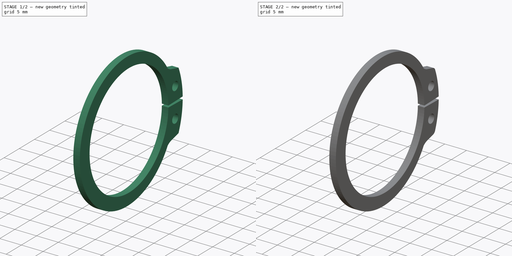
[diagram: build sequence overview — one tinted view per stage of 2, left to right]
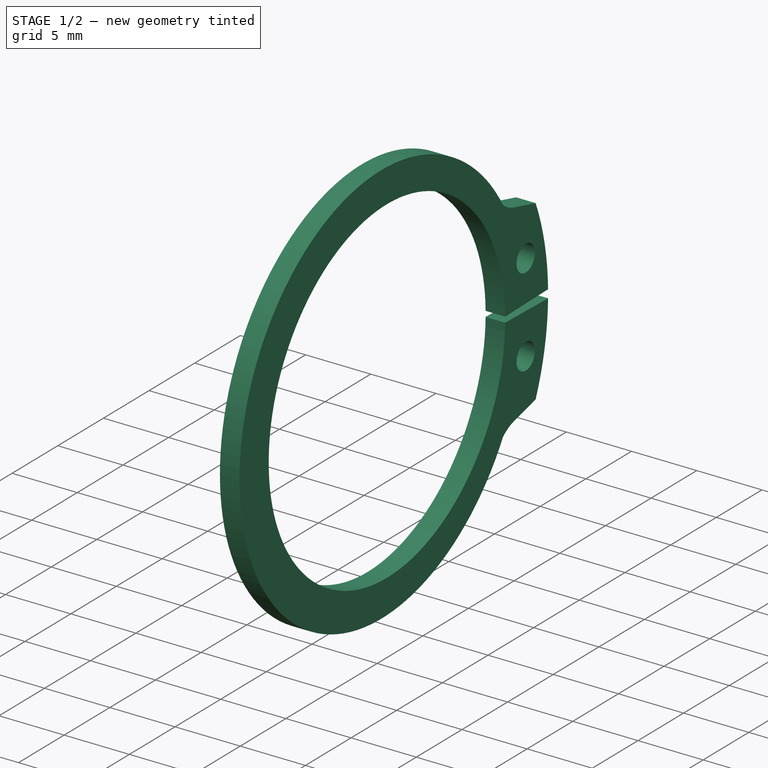
[diagram: stage 1 of 2 — iso view after this stage's code; geometry added in this stage tinted green]
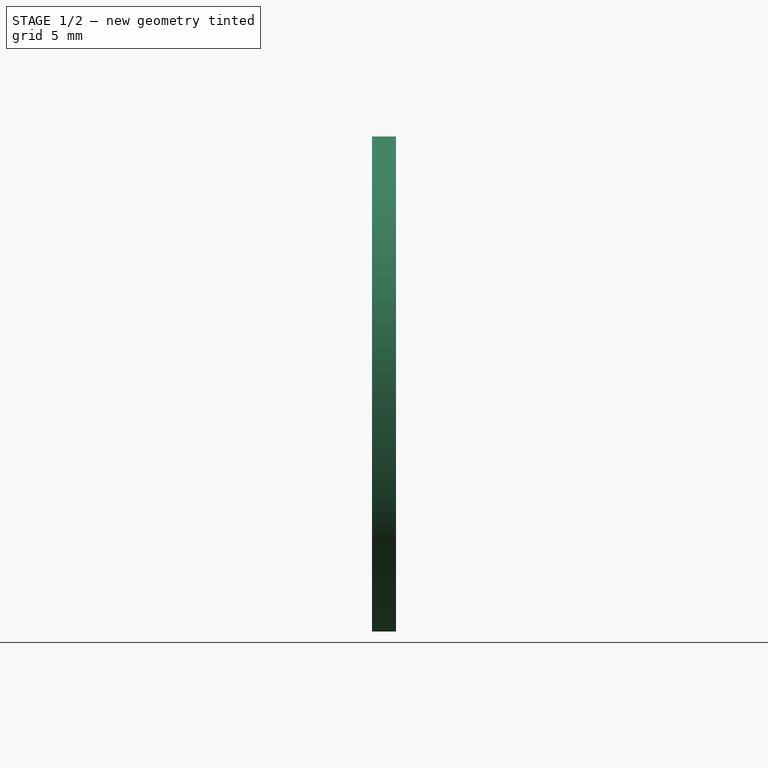
[diagram: stage 1 of 2 — front view after this stage's code; geometry added in this stage tinted green]
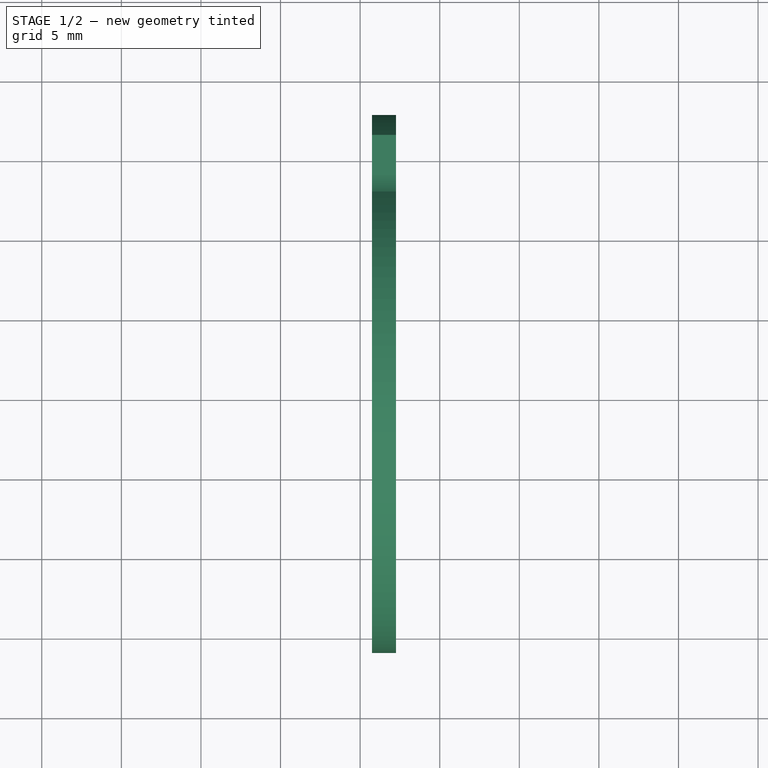
[diagram: stage 1 of 2 — top view after this stage's code; geometry added in this stage tinted green]
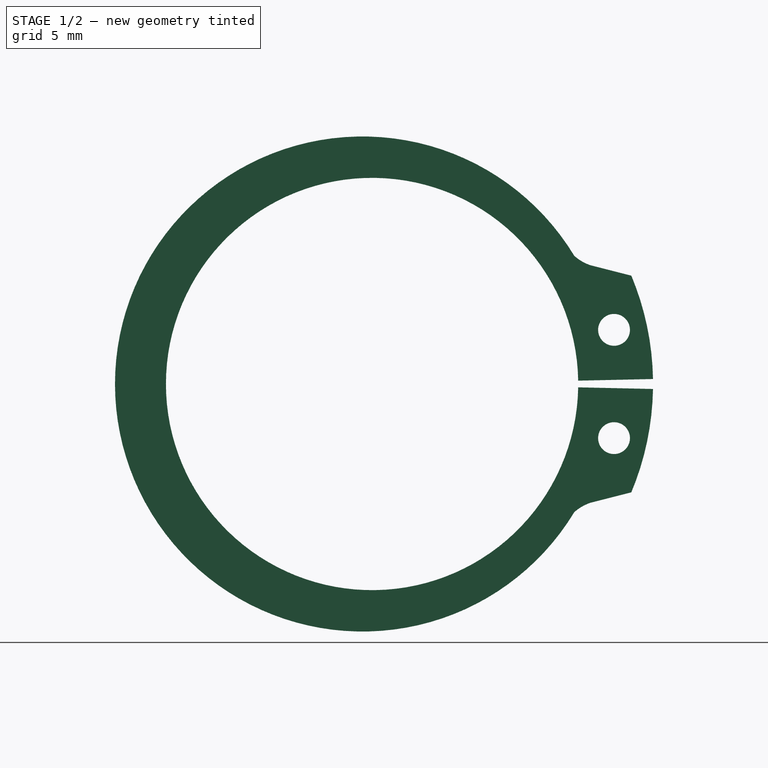
[diagram: stage 1 of 2 — right view after this stage's code; geometry added in this stage tinted green]
FCSTD DOCUMENT  (FreeCAD 0.15R4671 (Git))
Label: DIN471_CLASS_A_M28RetainingRings
License: CreativeCommons Attribution-ShareAlike
LicenseURL: http://creativecommons.org/licenses/by-sa/4.0/
objects: Sketcher::SketchObject×1, PartDesign::Pad×1, PartDesign::Mirrored×1, PartDesign::Fillet×1
note: 5 computed .brp shape members not serialized (recipe doc carries the construction recipe); baked Part::Feature solids carry a one-line shape summary decoded from their .brp

FEATURE [Sketcher::SketchObject] Sketch
  Placement = pos=(0.75,0,0) rot=(0.57735,0.57735,0.57735;2.0944rad)
  sketch-geometry (8):
    g0: Circle CenterX=15.2 CenterY=3.4 CenterZ=0 NormalX=0 NormalY=0 NormalZ=1 Radius=1
    g1: ArcOfCircle CenterX=0 CenterY=0 CenterZ=0 NormalX=0 NormalY=0 NormalZ=1 Radius=12.95 StartAngle=0.0162035 EndAngle=3.14159
    g2: ArcOfCircle CenterX=0 CenterY=0 CenterZ=0 NormalX=0 NormalY=0 NormalZ=1 Radius=17.6511 StartAngle=0.0177199 EndAngle=0.395835
    g3: ArcOfCircle CenterX=-0.6 CenterY=0 CenterZ=0 NormalX=0 NormalY=0 NormalZ=1 Radius=15.55 StartAngle=0.54452 EndAngle=3.14159
    g4: LineSegment StartX=-16.15 StartY=0 StartZ=0 EndX=-12.95 EndY=0 EndZ=0
    g5: LineSegment StartX=12.9483 StartY=0.209826 StartZ=0 EndX=17.6483 EndY=0.312759 EndZ=0
    g6: LineSegment StartX=16.2862 StartY=6.80588 StartZ=0 EndX=13.7321 EndY=7.45749 EndZ=0
    g7: ArcOfCircle CenterX=14.6212 CenterY=10.1798 CenterZ=0 NormalX=0 NormalY=0 NormalZ=1 Radius=2.8638 StartAngle=3.97756 EndAngle=4.39672
  constraints (26):
    c: Radius(g0) = 1
    c: DistanceY(g-1,g0) = 3.4
    c: DistanceX(g-1,g0) = 15.2
    c: Coincident(g1,g-1)
    c: PointOnObject(g1,g-1)
    c: Coincident(g2,g-1)
    c: PointOnObject(g3,g-1)
    c: PointOnObject(g3,g-1)
    c: Coincident(g4,g3)
    c: Coincident(g4,g1)
    c: DistanceX(g4) = 3.2
    c: DistanceX(g-1,g3) = -0.6
    c: Radius(g1) = 12.95
    c: Coincident(g5,g1)
    c: Coincident(g5,g2)
    c: DistanceX(g5) = 4.7
    c: DistanceX(g-1,g1) = 12.9483
    c: DistanceY(g-1,g2) = 0.312759
    c: Coincident(g6,g2)
    c: Coincident(g7,g3)
    c: Coincident(g7,g6)
    c: Radius(g7) = 2.8638
    c: DistanceX(g-1,g2) = 16.2862
    c: DistanceX(g-1,g3) = 12.7011
    c: DistanceY(g-1,g6) = 7.45749
    c: DistanceX(g6) = -2.55409
FEATURE [PartDesign::Pad] Pad
  Length = 1.5
  Length2 = 100
  Placement = pos=(0.75,0,0) rot=(0.57735,0.57735,0.57735;2.0944rad)
  Sketch = -> Sketch
  Type = 0
FEATURE [PartDesign::Mirrored] Mirrored
  MirrorPlane = -> Sketch [H_Axis]
  Originals = -> [Pad]
  Placement = pos=(0.75,0,0) rot=(0.57735,0.57735,0.57735;2.0944rad)
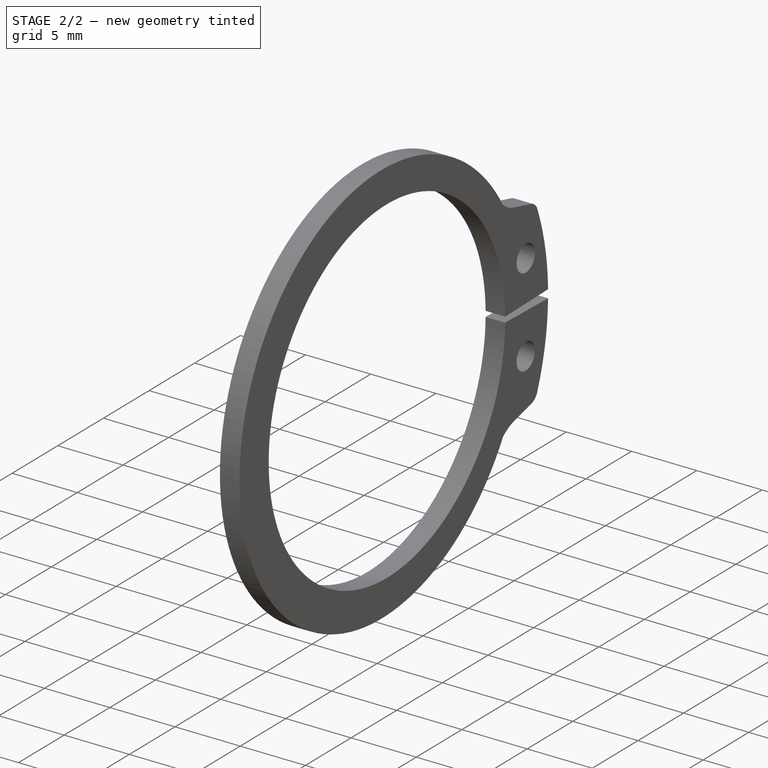
[diagram: stage 2 of 2 — iso view after this stage's code; geometry added in this stage tinted green]
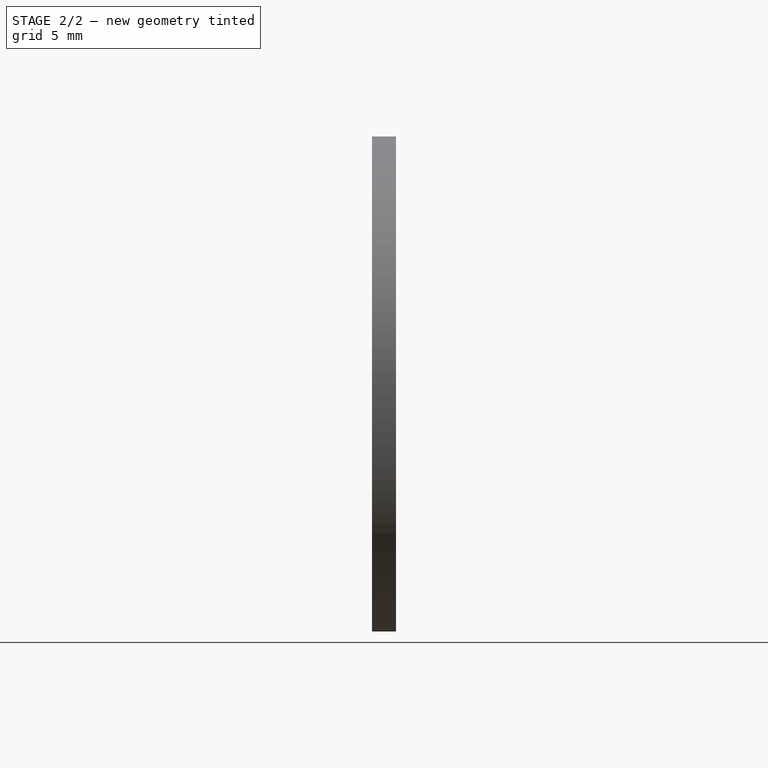
[diagram: stage 2 of 2 — front view after this stage's code; geometry added in this stage tinted green]
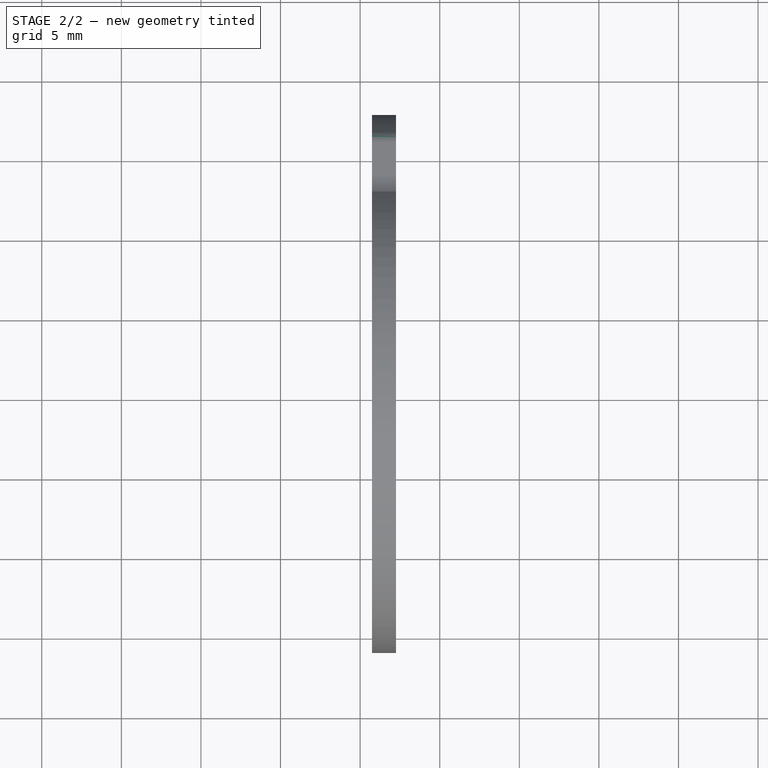
[diagram: stage 2 of 2 — top view after this stage's code; geometry added in this stage tinted green]
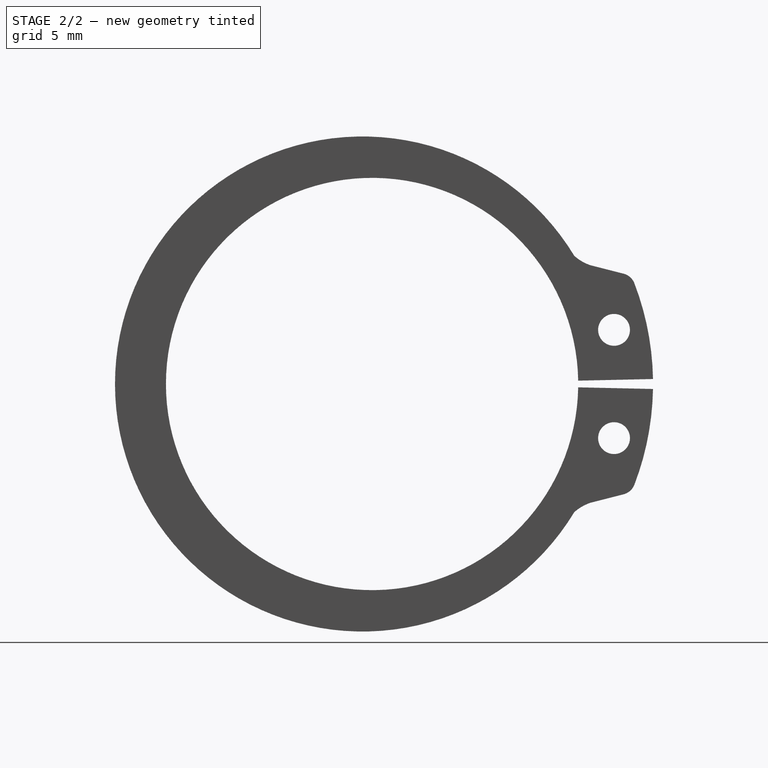
[diagram: stage 2 of 2 — right view after this stage's code; geometry added in this stage tinted green]
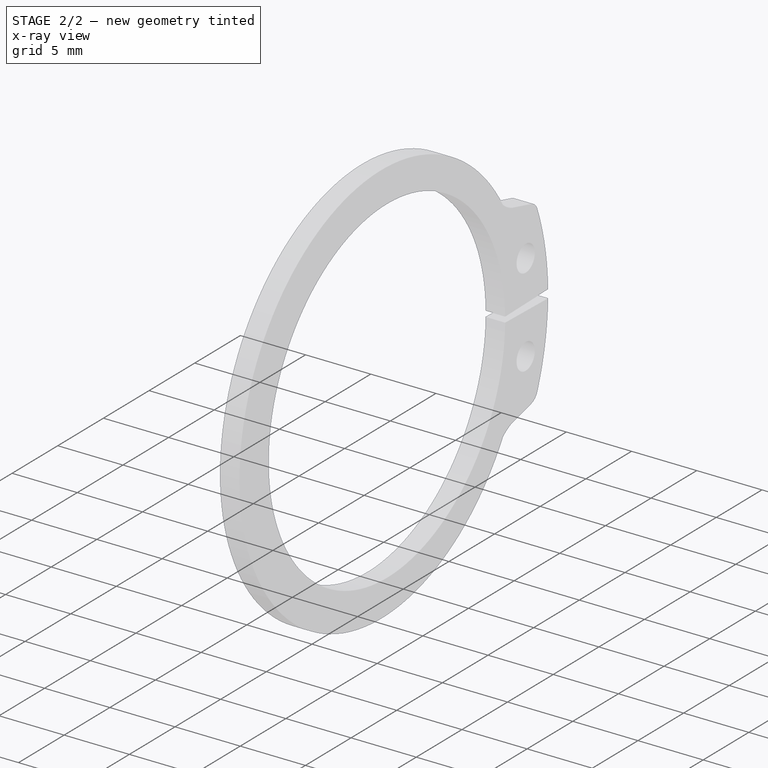
[diagram: stage 2 of 2 — x-ray composite at the iso view; earlier geometry ghosted, this stage's added geometry solid]
FEATURE [PartDesign::Fillet] Fillet
  Base = -> Mirrored [Edge27,Edge5]
  Placement = pos=(0.75,0,0) rot=(0.57735,0.57735,0.57735;2.0944rad)
  Radius = 1
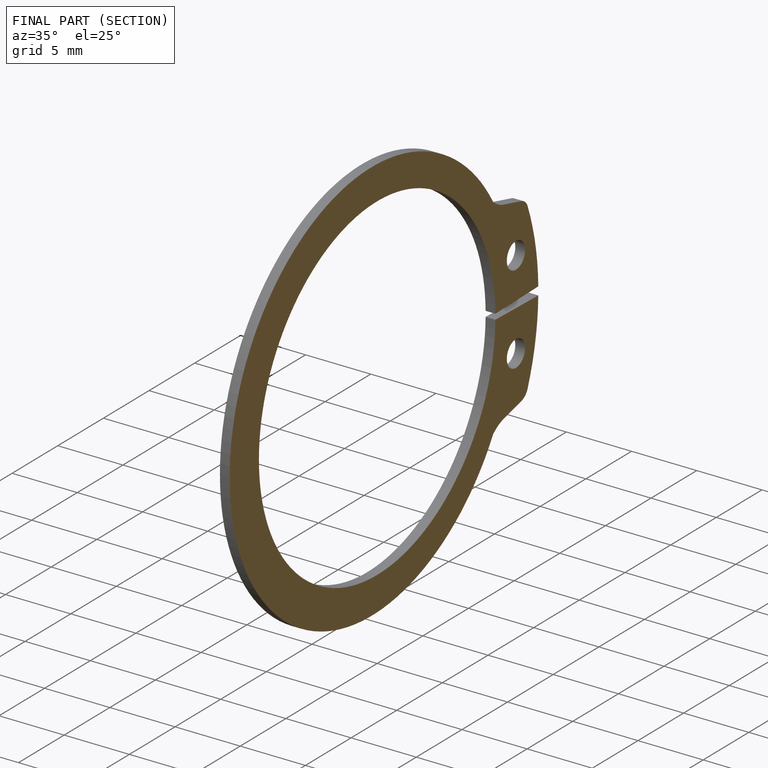
[diagram: finished part — half-section view (interior)]
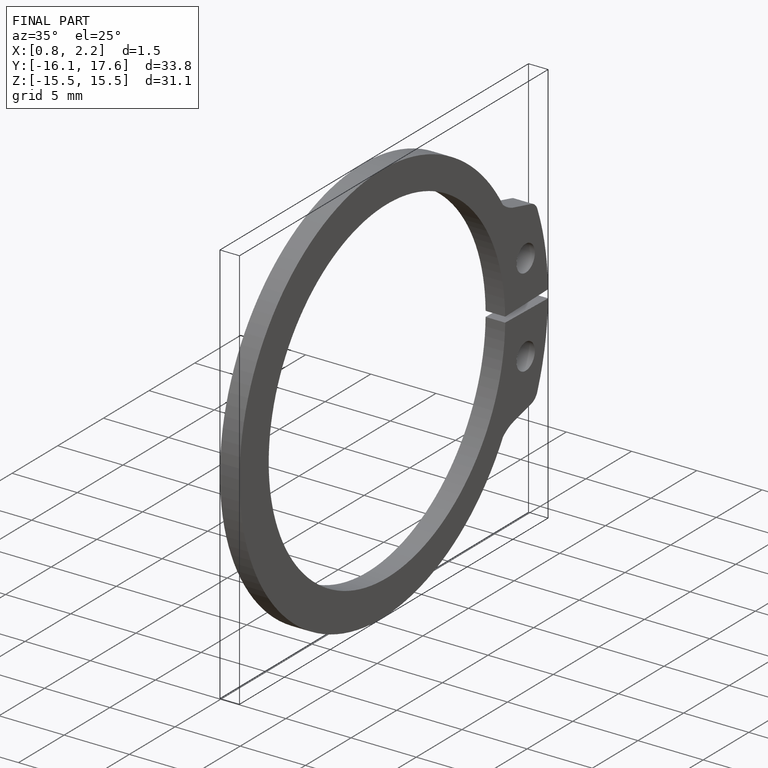
[diagram: finished part — iso view with bounding-box wireframe]
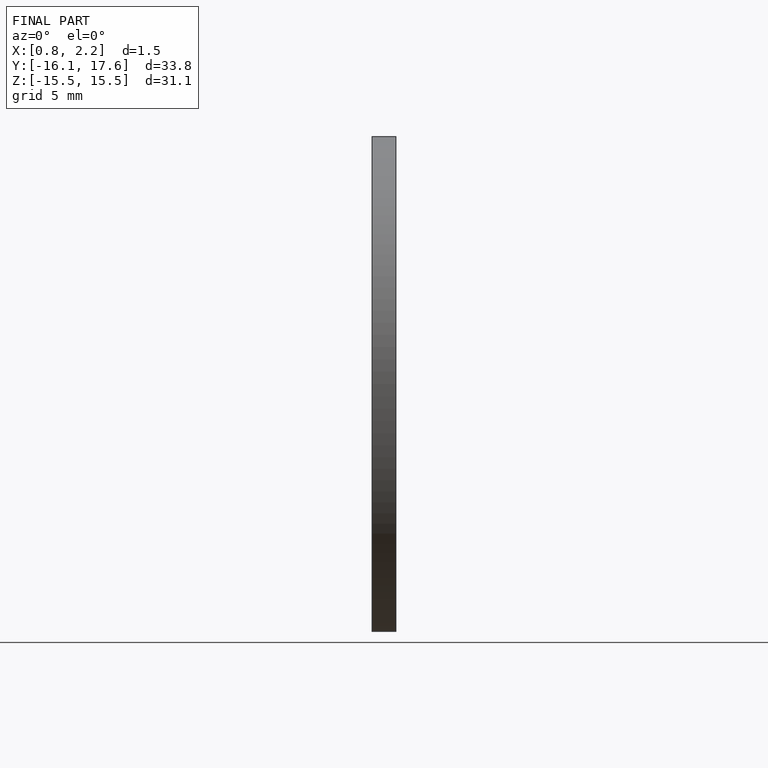
[diagram: finished part — front view with bounding-box wireframe]
